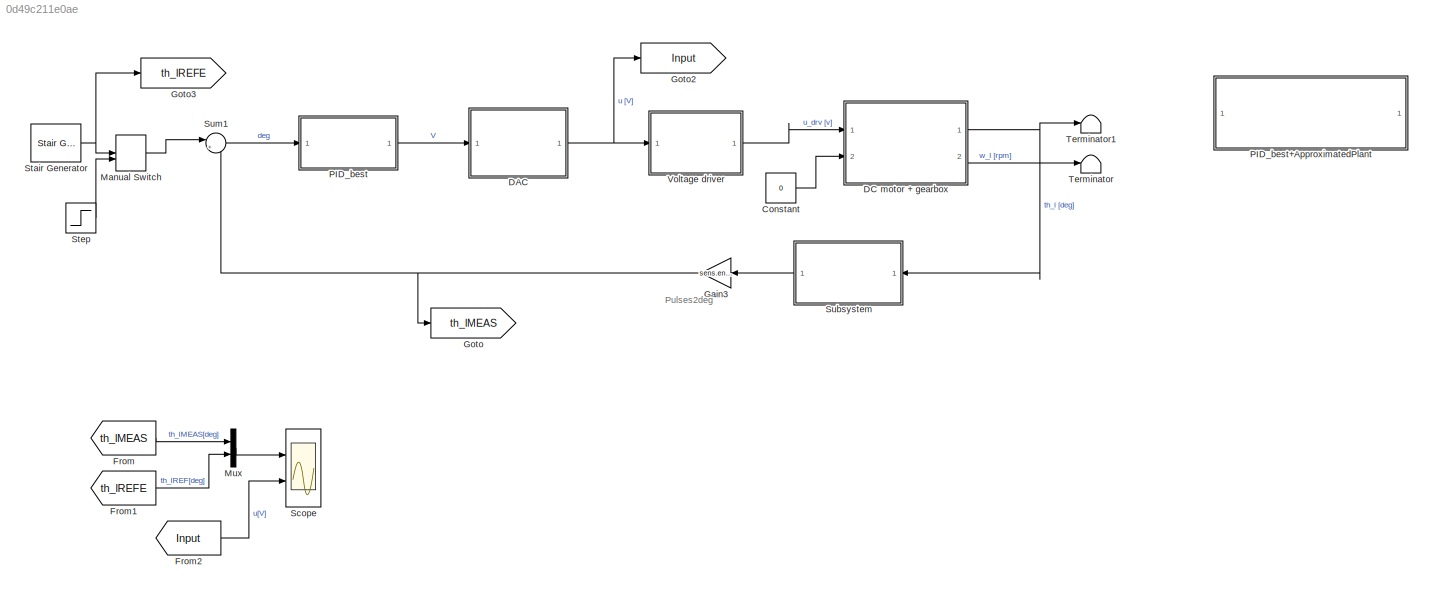
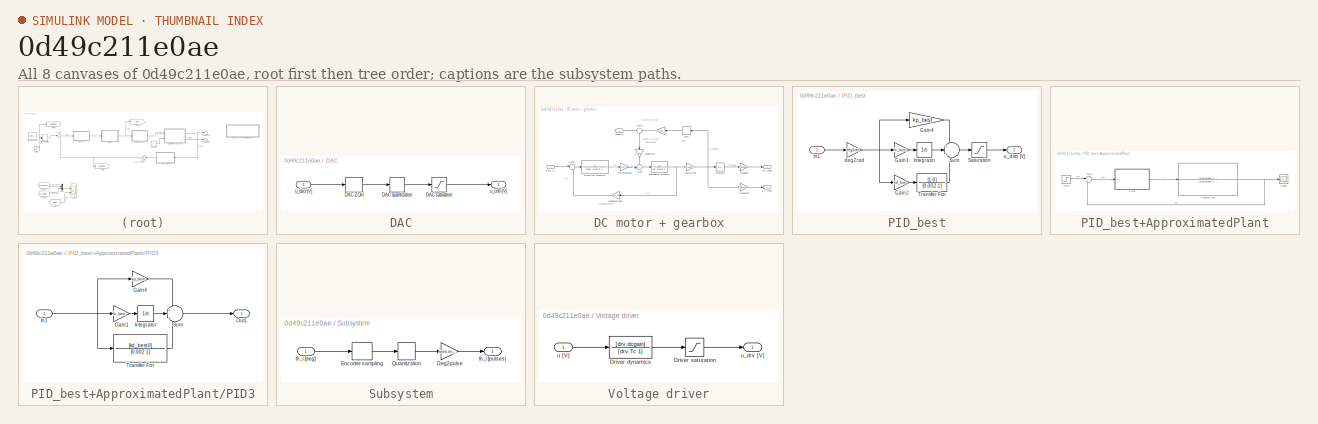
[diagram: thumbnail index - all 8 canvases of the model, root first then tree order]
MODEL slx_0d49c211e0ae
KIND model
CONFIG AbsTol = auto
CONFIG EnableMultiTasking = off
CONFIG FixedStep = auto
CONFIG MaxStep = auto
CONFIG MinStep = auto
CONFIG RelTol = 1e-3
CONFIG SampleTimeConstraint = Unconstrained
CONFIG SolverName = ode45
CONFIG StartTime = 0.0
CONFIG StopTime = 22
BLOCK [Constant] Constant
  Value = 0
BLOCK [SubSystem] DAC
  Ports = [1, 1]
  RequestExecContextInheritance = off
BLOCK [ZeroOrderHold] DAC/DAC ZOH
  SampleTime = sens.enc.T_s
BLOCK [Quantizer] DAC/DAC quantization
  QuantizationInterval = daq.dac.q
BLOCK [Saturate] DAC/DAC saturation
  LowerLimit = -10
  UpperLimit = 10
BLOCK [Outport] DAC/u_cntn [V]
BLOCK [Inport] DAC/u_dscr [V]
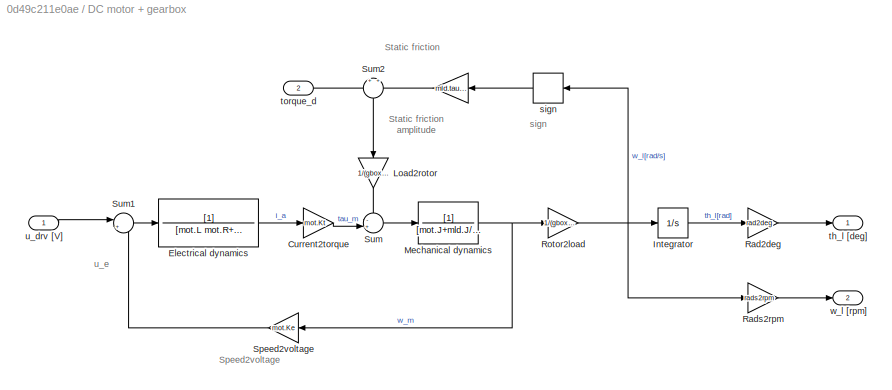
BLOCK [SubSystem] DC motor + gearbox
  Ports = [2, 2]
  RequestExecContextInheritance = off
BLOCK [Gain] DC motor + gearbox/ 
  Gain = mld.tausf
  NameLocation = top
BLOCK [Gain] DC motor + gearbox/Current2torque
  Gain = mot.Kt
BLOCK [TransferFcn] DC motor + gearbox/Electrical dynamics
  Denominator = [mot.L mot.R+sens.curr.Rs]
BLOCK [Integrator] DC motor + gearbox/Integrator
  Ports = [1, 1]
BLOCK [Gain] DC motor + gearbox/Load2rotor
  Gain = 1/(gbox.N)
  NameLocation = left
BLOCK [TransferFcn] DC motor + gearbox/Mechanical dynamics
  Denominator = [mot.J+mld.J/(gbox.N)^2 2*10^(-6)]
BLOCK [Gain] DC motor + gearbox/Rad2deg
  Gain = rad2deg
BLOCK [Gain] DC motor + gearbox/Rads2rpm
  Gain = rads2rpm
BLOCK [Gain] DC motor + gearbox/Rotor2load
  Gain = 1/(gbox.N)
BLOCK [Gain] DC motor + gearbox/Speed2voltage
  Gain = mot.Ke
  NameLocation = top
BLOCK [Sum] DC motor + gearbox/Sum
  Inputs = -+|
  Ports = [2, 1]
BLOCK [Sum] DC motor + gearbox/Sum1
  Inputs = |+-
  Ports = [2, 1]
BLOCK [Sum] DC motor + gearbox/Sum2
  Inputs = +|+
  NameLocation = left
  Ports = [2, 1]
BLOCK [Signum] DC motor + gearbox/sign
  NameLocation = top
  ZeroCross = off
BLOCK [Outport] DC motor + gearbox/th_l [deg]
BLOCK [Inport] DC motor + gearbox/torque_d
  Port = 2
BLOCK [Inport] DC motor + gearbox/u_drv [V]
BLOCK [Outport] DC motor + gearbox/w_l [rpm]
  Port = 2
BLOCK [From] From
  GotoTag = th_lMEAS
BLOCK [From] From1
  GotoTag = th_lREFE
BLOCK [From] From2
  GotoTag = Input
BLOCK [Gain] Gain3
  Gain = sens.enc.pulse2deg
  NameLocation = top
BLOCK [Goto] Goto
  GotoTag = th_lMEAS
BLOCK [Goto] Goto2
  GotoTag = Input
BLOCK [Goto] Goto3
  GotoTag = th_lREFE
BLOCK [ManualSwitch] Manual Switch
BLOCK [Mux] Mux
  DisplayOption = bar
  Inputs = 2
  Ports = [2, 1]
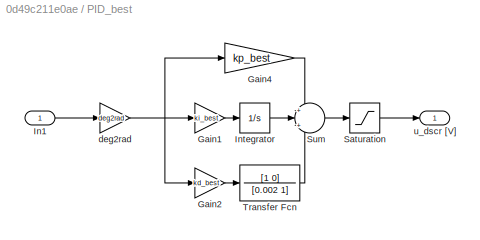
BLOCK [SubSystem] PID_best
  Ports = [1, 1]
  RequestExecContextInheritance = off
BLOCK [SubSystem] PID_best+ApproximatedPlant
  Ports = []
  RequestExecContextInheritance = off
BLOCK [SubSystem] PID_best+ApproximatedPlant/PID3
  Ports = [1, 1]
  RequestExecContextInheritance = off
BLOCK [Gain] PID_best+ApproximatedPlant/PID3/Gain1
  Gain = ki_best
BLOCK [Gain] PID_best+ApproximatedPlant/PID3/Gain4
  Gain = kp_best
BLOCK [Inport] PID_best+ApproximatedPlant/PID3/In1
BLOCK [Integrator] PID_best+ApproximatedPlant/PID3/Integrator
  Ports = [1, 1]
BLOCK [Outport] PID_best+ApproximatedPlant/PID3/Out1
BLOCK [Sum] PID_best+ApproximatedPlant/PID3/Sum
  Inputs = +|+|+
  Ports = [3, 1]
BLOCK [TransferFcn] PID_best+ApproximatedPlant/PID3/Transfer Fcn
  Denominator = [0.002 1]
  Numerator = [kd_best 0]
BLOCK [Scope] PID_best+ApproximatedPlant/Scope
  Floating = off
  NumInputPorts = 1
  Ports = [1]
  ScopeSpecificationString = Simulink.scopes.TimeScopeBlockCfg('CurrentConfiguration', extmgr.ConfigurationSet(extmgr.Configuration('Core','General UI',true),extmgr.Configuration('Core','Source UI',true),extmgr.Configuration('Sources','WiredSimulink',true,'DataLoggingVariableName','ScopeData2'),extmgr.Configuration('Visuals','Time Domain',true,'SerializedDisplays',{struct('MinYLimReal','-0.1369','MaxYLimReal','1.23212','YLabe...<+1386ch>
BLOCK [Step] PID_best+ApproximatedPlant/Step
  SampleTime = 0
  Time = 0
BLOCK [Sum] PID_best+ApproximatedPlant/Sum
  Inputs = |+-
  Ports = [2, 1]
BLOCK [TransferFcn] PID_best+ApproximatedPlant/Transfer Fcn
  Denominator = [simp_model.Tm*14 14 0]
  Numerator = [simp_model.Km]
BLOCK [Gain] PID_best/Gain1
  Gain = ki_best
BLOCK [Gain] PID_best/Gain2
  Gain = kd_best
BLOCK [Gain] PID_best/Gain4
  Gain = kp_best
BLOCK [Inport] PID_best/In1
BLOCK [Integrator] PID_best/Integrator
  Ports = [1, 1]
BLOCK [Saturate] PID_best/Saturation
  LowerLimit = -10
  UpperLimit = 10
BLOCK [Sum] PID_best/Sum
  Inputs = +|+|+
  Ports = [3, 1]
BLOCK [TransferFcn] PID_best/Transfer Fcn
  Denominator = [0.002 1]
  Numerator = [1 0]
BLOCK [Gain] PID_best/deg2rad
  Gain = deg2rad
BLOCK [Outport] PID_best/u_dscr [V]
BLOCK [Scope] Scope
  Floating = off
  NumInputPorts = 2
  Ports = [2]
  ScopeSpecificationString = Simulink.scopes.TimeScopeBlockCfg('CurrentConfiguration', extmgr.ConfigurationSet(extmgr.Configuration('Core','General UI',true),extmgr.Configuration('Core','Source UI',true),extmgr.Configuration('Sources','WiredSimulink',true,'DataLoggingVariableName','ScopeData3'),extmgr.Configuration('Visuals','Time Domain',true,'SerializedDisplays',{struct('MinYLimReal','-68.09326','MaxYLimReal','462.54639','Y...<+2071ch>
BLOCK [Reference] Stair Generator  REF=spsStairGeneratorLib/Stair
Generator
  Ports = [0, 1]
  SourceBlock = spsStairGeneratorLib/Stair\nGenerator
  SourceProductBaseCode = PS
  SourceType = Stair Generator
BLOCK [Step] Step
  After = 10
  SampleTime = 0
  Time = 0
BLOCK [SubSystem] Subsystem
  NameLocation = top
  Ports = [1, 1]
  RequestExecContextInheritance = off
BLOCK [Gain] Subsystem/Deg2pulse
  Gain = sens.enc.deg2pulse
BLOCK [ZeroOrderHold] Subsystem/Encoder sampling
  SampleTime = 0.001
BLOCK [Quantizer] Subsystem/Quantization
  QuantizationInterval = sens.enc.q
BLOCK [Inport] Subsystem/th_l [deg]
BLOCK [Outport] Subsystem/th_l [pulses]
BLOCK [Sum] Sum1
  Inputs = |+-
  Ports = [2, 1]
BLOCK [Terminator] Terminator
BLOCK [Terminator] Terminator1
BLOCK [SubSystem] Voltage driver
  Ports = [1, 1]
  RequestExecContextInheritance = off
BLOCK [TransferFcn] Voltage driver/Driver dynamics
  Denominator = [drv.Tc 1]
  Numerator = [drv.dcgain]
BLOCK [Saturate] Voltage driver/Driver saturation
  LowerLimit = -12
  UpperLimit = 12
BLOCK [Inport] Voltage driver/u [V]
BLOCK [Outport] Voltage driver/u_drv [V]
ANNOTATION (root): Pulses2deg
ANNOTATION DC motor + gearbox: Static friction
ANNOTATION DC motor + gearbox: Speed2voltage
ANNOTATION DC motor + gearbox: Static friction amplitude
ANNOTATION DC motor + gearbox: sign
ANNOTATION DC motor + gearbox: u_e
LINE Constant:1 -> DC motor + gearbox:2
LINE DAC/DAC ZOH:1 -> DAC/DAC quantization:1
LINE DAC/DAC quantization:1 -> DAC/DAC saturation:1
LINE DAC/DAC saturation:1 -> DAC/u_cntn [V]:1
LINE DAC/u_dscr [V]:1 -> DAC/DAC ZOH:1
NET DAC:1 -> Goto2:1, Voltage driver:1
LINE DC motor + gearbox/ :1 -> DC motor + gearbox/Sum2:2
LINE DC motor + gearbox/Current2torque:1 -> DC motor + gearbox/Sum:2
LINE DC motor + gearbox/Electrical dynamics:1 -> DC motor + gearbox/Current2torque:1
LINE DC motor + gearbox/Integrator:1 -> DC motor + gearbox/Rad2deg:1
LINE DC motor + gearbox/Load2rotor:1 -> DC motor + gearbox/Sum:1
NET DC motor + gearbox/Mechanical dynamics:1 -> DC motor + gearbox/Rotor2load:1, DC motor + gearbox/Speed2voltage:1
LINE DC motor + gearbox/Rad2deg:1 -> DC motor + gearbox/th_l [deg]:1
LINE DC motor + gearbox/Rads2rpm:1 -> DC motor + gearbox/w_l [rpm]:1
NET DC motor + gearbox/Rotor2load:1 -> DC motor + gearbox/Integrator:1, DC motor + gearbox/Rads2rpm:1, DC motor + gearbox/sign:1
LINE DC motor + gearbox/Speed2voltage:1 -> DC motor + gearbox/Sum1:2
LINE DC motor + gearbox/Sum1:1 -> DC motor + gearbox/Electrical dynamics:1
LINE DC motor + gearbox/Sum2:1 -> DC motor + gearbox/Load2rotor:1
LINE DC motor + gearbox/Sum:1 -> DC motor + gearbox/Mechanical dynamics:1
LINE DC motor + gearbox/sign:1 -> DC motor + gearbox/ :1
LINE DC motor + gearbox/torque_d:1 -> DC motor + gearbox/Sum2:1
LINE DC motor + gearbox/u_drv [V]:1 -> DC motor + gearbox/Sum1:1
NET DC motor + gearbox:1 -> Subsystem:1, Terminator1:1
LINE DC motor + gearbox:2 -> Terminator:1
LINE From1:1 -> Mux:2
LINE From2:1 -> Scope:2
LINE From:1 -> Mux:1
NET Gain3:1 -> Goto:1, Sum1:2
LINE Manual Switch:1 -> Sum1:1
LINE Mux:1 -> Scope:1
LINE PID_best+ApproximatedPlant/PID3/Gain1:1 -> PID_best+ApproximatedPlant/PID3/Integrator:1
LINE PID_best+ApproximatedPlant/PID3/Gain4:1 -> PID_best+ApproximatedPlant/PID3/Sum:1
NET PID_best+ApproximatedPlant/PID3/In1:1 -> PID_best+ApproximatedPlant/PID3/Gain1:1, PID_best+ApproximatedPlant/PID3/Gain4:1, PID_best+ApproximatedPlant/PID3/Transfer Fcn:1
LINE PID_best+ApproximatedPlant/PID3/Integrator:1 -> PID_best+ApproximatedPlant/PID3/Sum:2
LINE PID_best+ApproximatedPlant/PID3/Sum:1 -> PID_best+ApproximatedPlant/PID3/Out1:1
LINE PID_best+ApproximatedPlant/PID3/Transfer Fcn:1 -> PID_best+ApproximatedPlant/PID3/Sum:3
LINE PID_best+ApproximatedPlant/PID3:1 -> PID_best+ApproximatedPlant/Transfer Fcn:1
LINE PID_best+ApproximatedPlant/Step:1 -> PID_best+ApproximatedPlant/Sum:1
LINE PID_best+ApproximatedPlant/Sum:1 -> PID_best+ApproximatedPlant/PID3:1
NET PID_best+ApproximatedPlant/Transfer Fcn:1 -> PID_best+ApproximatedPlant/Scope:1, PID_best+ApproximatedPlant/Sum:2
LINE PID_best/Gain1:1 -> PID_best/Integrator:1
LINE PID_best/Gain2:1 -> PID_best/Transfer Fcn:1
LINE PID_best/Gain4:1 -> PID_best/Sum:1
LINE PID_best/In1:1 -> PID_best/deg2rad:1
LINE PID_best/Integrator:1 -> PID_best/Sum:2
LINE PID_best/Saturation:1 -> PID_best/u_dscr [V]:1
LINE PID_best/Sum:1 -> PID_best/Saturation:1
LINE PID_best/Transfer Fcn:1 -> PID_best/Sum:3
NET PID_best/deg2rad:1 -> PID_best/Gain1:1, PID_best/Gain2:1, PID_best/Gain4:1
LINE PID_best:1 -> DAC:1
NET Stair Generator:1 -> Goto3:1, Manual Switch:1
LINE Step:1 -> Manual Switch:2
LINE Subsystem/Deg2pulse:1 -> Subsystem/th_l [pulses]:1
LINE Subsystem/Encoder sampling:1 -> Subsystem/Quantization:1
LINE Subsystem/Quantization:1 -> Subsystem/Deg2pulse:1
LINE Subsystem/th_l [deg]:1 -> Subsystem/Encoder sampling:1
LINE Subsystem:1 -> Gain3:1
LINE Sum1:1 -> PID_best:1
LINE Voltage driver/Driver dynamics:1 -> Voltage driver/Driver saturation:1
LINE Voltage driver/Driver saturation:1 -> Voltage driver/u_drv [V]:1
LINE Voltage driver/u [V]:1 -> Voltage driver/Driver dynamics:1
LINE Voltage driver:1 -> DC motor + gearbox:1
note: NET lines group one-source signal fan-out (src -> all destinations, sorted); 1:1 wires keep LINE
